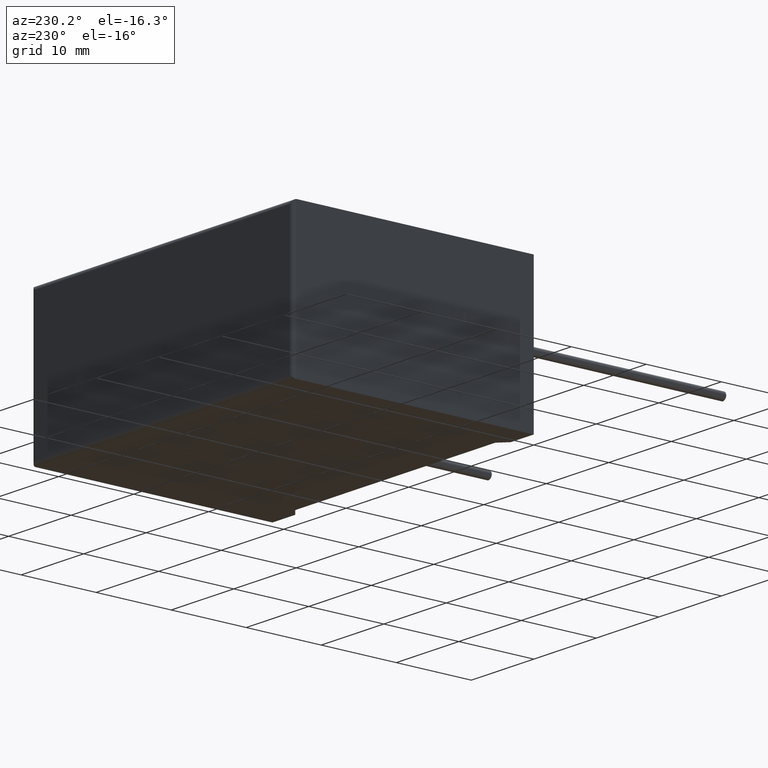
[diagram: clean part render]
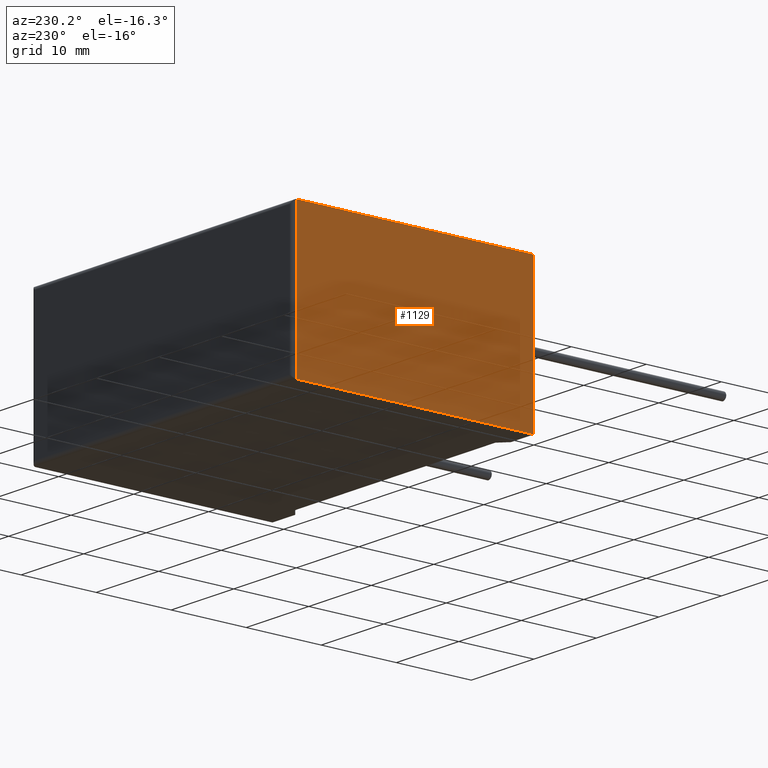
[diagram: same view with one face highlighted and labeled with its STEP entity id]
A machine part, auxiliary view. The second image highlights one B-rep face of the part: STEP entity #1129.
In plain terms, the highlighted planar face has unit normal (1, 0, 0).
Its self-contained STEP definition (entity closure, byte-faithful):
#5 = VECTOR ( 'NONE', #1822, 1000.000000000000000 ) ;
#33 = DIRECTION ( 'NONE',  ( 0.000000000000000000, 0.000000000000000000, -1.000000000000000000 ) ) ;
#57 = CARTESIAN_POINT ( 'NONE',  ( 0.000000000000000000, 0.000000000000000000, 0.000000000000000000 ) ) ;
#72 = VERTEX_POINT ( 'NONE', #2948 ) ;
#200 = DIRECTION ( 'NONE',  ( 0.000000000000000000, 0.000000000000000000, -1.000000000000000000 ) ) ;
#384 = ORIENTED_EDGE ( 'NONE', *, *, #1174, .F. ) ;
#435 = EDGE_CURVE ( 'NONE', #1892, #2693, #1046, .T. ) ;
#437 = LINE ( 'NONE', #870, #5 ) ;
#452 = DIRECTION ( 'NONE',  ( -0.000000000000000000, -1.000000000000000000, -0.000000000000000000 ) ) ;
#483 = EDGE_CURVE ( 'NONE', #2709, #2693, #437, .T. ) ;
#575 = EDGE_CURVE ( 'NONE', #72, #1892, #892, .T. ) ;
#787 = DIRECTION ( 'NONE',  ( -0.000000000000000000, -1.000000000000000000, -0.000000000000000000 ) ) ;
#870 = CARTESIAN_POINT ( 'NONE',  ( 0.000000000000000000, 0.000000000000000000, 19.19999999999999929 ) ) ;
#892 = LINE ( 'NONE', #2284, #2916 ) ;
#1046 = LINE ( 'NONE', #1474, #2829 ) ;
#1129 = ADVANCED_FACE ( 'NONE', ( #1307 ), #2972, .F. ) ;
#1174 = EDGE_CURVE ( 'NONE', #72, #2709, #1869, .T. ) ;
#1307 = FACE_OUTER_BOUND ( 'NONE', #1446, .T. ) ;
#1446 = EDGE_LOOP ( 'NONE', ( #384, #1734, #2327, #1801 ) ) ;
#1474 = CARTESIAN_POINT ( 'NONE',  ( 0.000000000000000000, 0.000000000000000000, 0.000000000000000000 ) ) ;
#1671 = CARTESIAN_POINT ( 'NONE',  ( 0.000000000000000000, 31.60000000000000142, 0.000000000000000000 ) ) ;
#1679 = VECTOR ( 'NONE', #452, 1000.000000000000000 ) ;
#1734 = ORIENTED_EDGE ( 'NONE', *, *, #575, .T. ) ;
#1737 = CARTESIAN_POINT ( 'NONE',  ( 0.000000000000000000, 0.000000000000000000, 19.19999999999999929 ) ) ;
#1801 = ORIENTED_EDGE ( 'NONE', *, *, #483, .F. ) ;
#1822 = DIRECTION ( 'NONE',  ( -0.000000000000000000, -0.000000000000000000, -1.000000000000000000 ) ) ;
#1869 = LINE ( 'NONE', #2549, #1679 ) ;
#1892 = VERTEX_POINT ( 'NONE', #1671 ) ;
#2111 = AXIS2_PLACEMENT_3D ( 'NONE', #2358, #2297, #33 ) ;
#2284 = CARTESIAN_POINT ( 'NONE',  ( 0.000000000000000000, 31.60000000000000142, 19.19999999999999929 ) ) ;
#2297 = DIRECTION ( 'NONE',  ( 1.000000000000000000, 0.000000000000000000, 0.000000000000000000 ) ) ;
#2327 = ORIENTED_EDGE ( 'NONE', *, *, #435, .T. ) ;
#2358 = CARTESIAN_POINT ( 'NONE',  ( 0.000000000000000000, 0.000000000000000000, 19.19999999999999929 ) ) ;
#2549 = CARTESIAN_POINT ( 'NONE',  ( 0.000000000000000000, 0.000000000000000000, 19.19999999999999929 ) ) ;
#2693 = VERTEX_POINT ( 'NONE', #57 ) ;
#2709 = VERTEX_POINT ( 'NONE', #1737 ) ;
#2829 = VECTOR ( 'NONE', #787, 1000.000000000000000 ) ;
#2916 = VECTOR ( 'NONE', #200, 1000.000000000000000 ) ;
#2948 = CARTESIAN_POINT ( 'NONE',  ( 0.000000000000000000, 31.60000000000000142, 19.19999999999999929 ) ) ;
#2972 = PLANE ( 'NONE',  #2111 ) ;